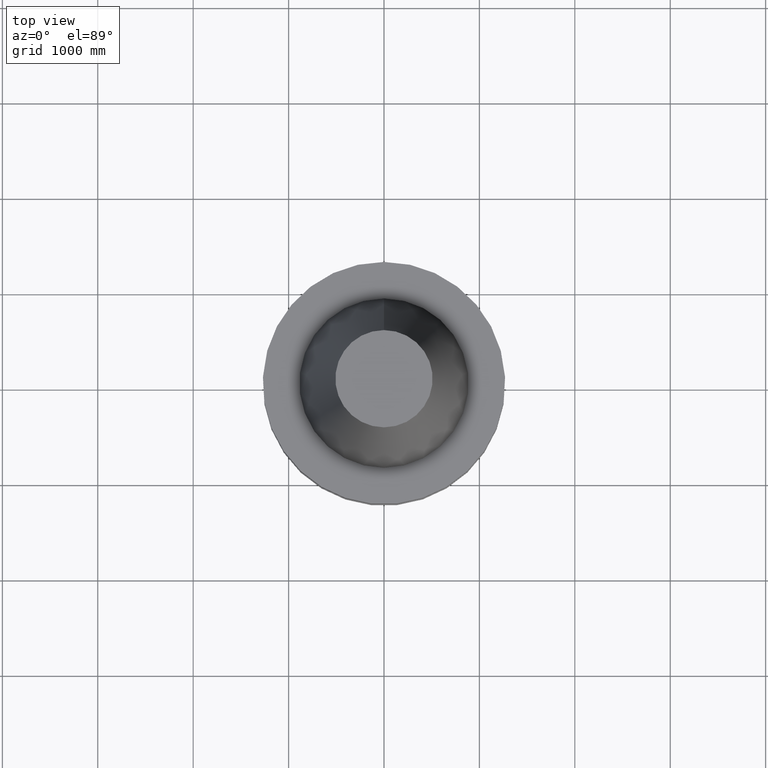
[diagram: clean part render]
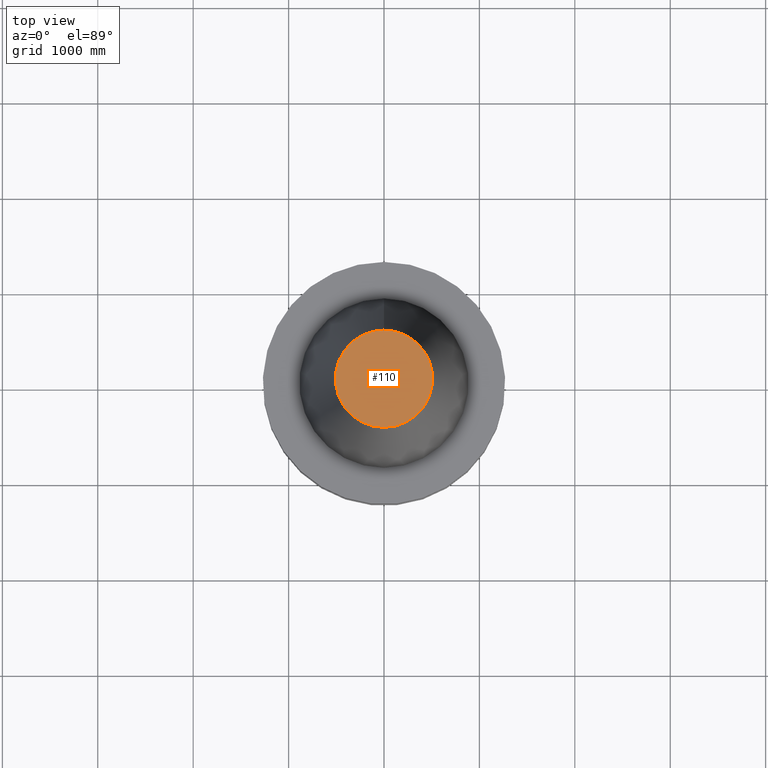
[diagram: same view with one face highlighted and labeled with its STEP entity id]
A machine part, top view. The second image highlights one B-rep face of the part: STEP entity #110.
In plain terms, the highlighted planar face has unit normal (-0, -0, 1).
Its self-contained STEP definition (entity closure, byte-faithful):
#110=ADVANCED_FACE('Unnamed[1]',(#256),#257,.T.);
#172=EDGE_CURVE('Unnamed[1]',#350,#350,#351,.T.);
#256=FACE_OUTER_BOUND('',#445,.T.);
#257=PLANE('',#446);
#350=VERTEX_POINT('',#562);
#351=CIRCLE('',#563,20.0791666651884);
#445=EDGE_LOOP('',(#643));
#446=AXIS2_PLACEMENT_3D('',#644,#645,#646);
#562=CARTESIAN_POINT('',(-6.23345220766003E-015,20.0791666651884,101.8));
#563=AXIS2_PLACEMENT_3D('',#744,#745,#746);
#643=ORIENTED_EDGE('',*,*,#172,.T.);
#644=CARTESIAN_POINT('',(-6.23345220766003E-015,10.0395833325942,101.8));
#645=DIRECTION('',(-6.12323399573677E-017,-1.22464679914735E-016,1.0));
#646=DIRECTION('',(-1.23259516440783E-032,1.0,1.22464679914735E-016));
#744=CARTESIAN_POINT('',(-6.23345220766003E-015,1.30378574894418E-014,101.8));
#745=DIRECTION('',(-6.12323399573677E-017,-2.72265846766713E-017,1.0));
#746=DIRECTION('',(-6.49430021956955E-033,1.0,2.72265846766713E-017));